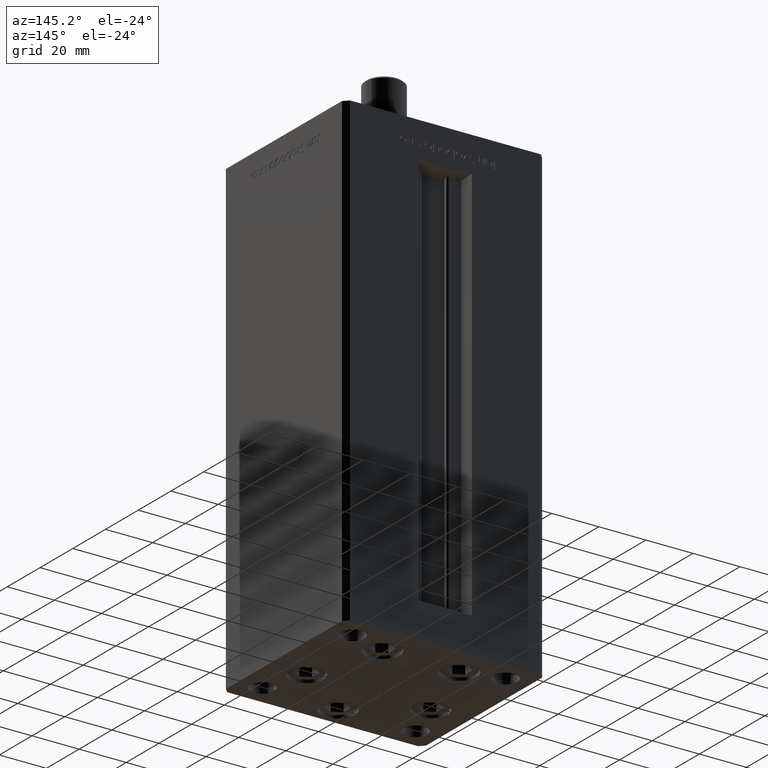
[diagram: clean part render]
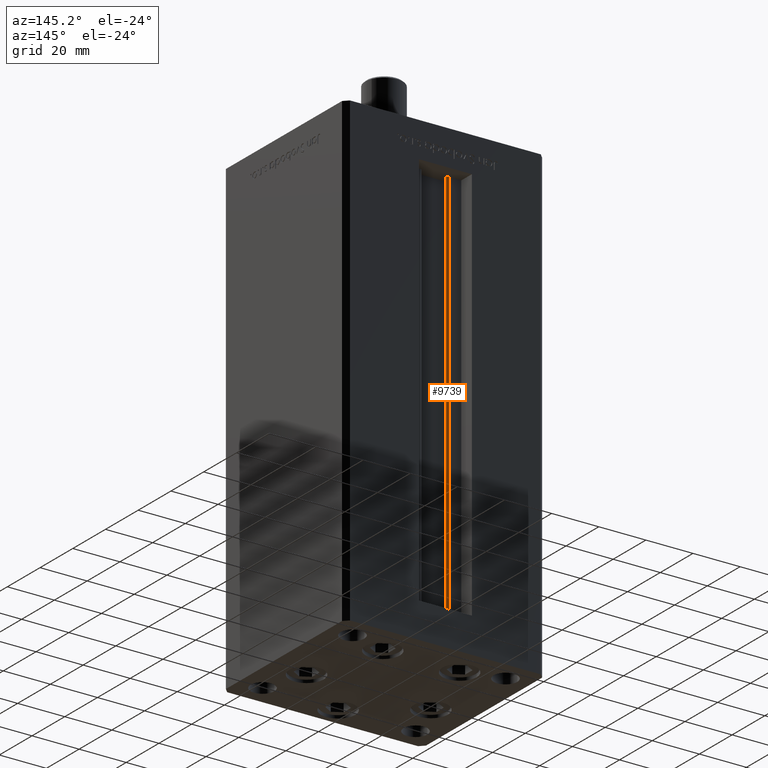
[diagram: same view with one face highlighted and labeled with its STEP entity id]
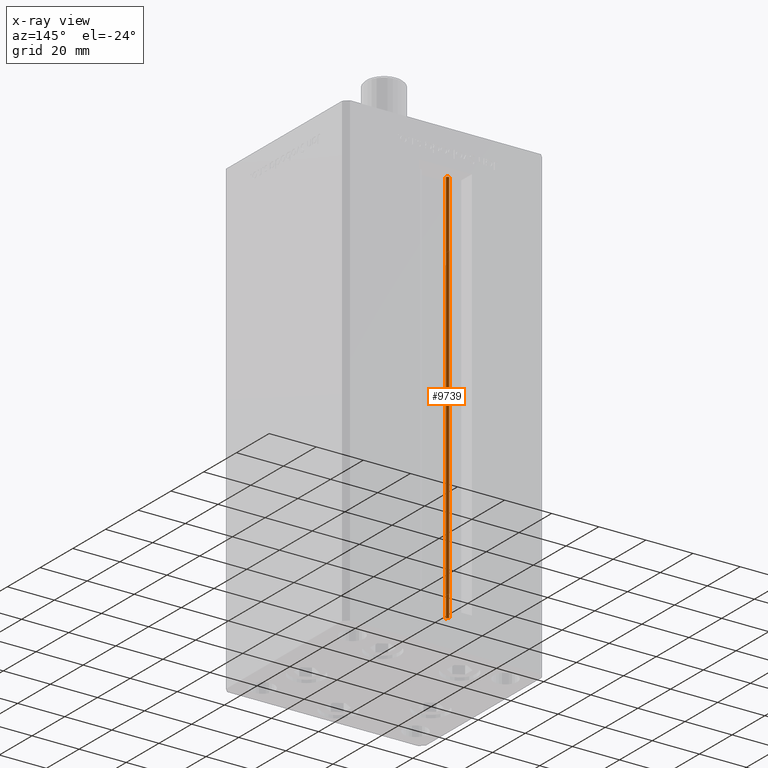
[diagram: x-ray of the same camera — body ghosted, the highlighted face saturated]
A machine part, auxiliary view. The second image highlights one B-rep face of the part: STEP entity #9739.
The next image is the same camera in x-ray: the body ghosted, the highlighted face saturated — about 0% of this face is hidden behind the body in this view.
In plain terms, the highlighted cylindrical surface (edge-blend (fillet) strip) has radius 0.9333 mm, axis along (0, 0, 1).
Its self-contained STEP definition (entity closure, byte-faithful):
#341 = CARTESIAN_POINT ( 'NONE',  ( -6.183333333333999704, 30.99999999999999289, 168.5000000000000000 ) ) ;
#374 = CIRCLE ( 'NONE', #27468, 0.9333333333340015914 ) ;
#528 = DIRECTION ( 'NONE',  ( 0.000000000000000000, 0.000000000000000000, -1.000000000000000000 ) ) ;
#2448 = AXIS2_PLACEMENT_3D ( 'NONE', #30695, #10281, #39665 ) ;
#7507 = CIRCLE ( 'NONE', #2448, 0.9333333333340015914 ) ;
#9675 = EDGE_CURVE ( 'NONE', #15786, #52094, #38203, .T. ) ;
#9739 = ADVANCED_FACE ( 'NONE', ( #13310 ), #29483, .T. ) ;
#10281 = DIRECTION ( 'NONE',  ( -0.000000000000000000, -0.000000000000000000, -1.000000000000000000 ) ) ;
#10504 = VERTEX_POINT ( 'NONE', #43981 ) ;
#10572 = ORIENTED_EDGE ( 'NONE', *, *, #9675, .F. ) ;
#11010 = AXIS2_PLACEMENT_3D ( 'NONE', #45630, #38987, #27049 ) ;
#13310 = FACE_OUTER_BOUND ( 'NONE', #32880, .T. ) ;
#15786 = VERTEX_POINT ( 'NONE', #47539 ) ;
#19490 = VECTOR ( 'NONE', #33975, 1000.000000000000000 ) ;
#20680 = CARTESIAN_POINT ( 'NONE',  ( -6.183333333333999704, 30.06666666666599141, 168.5000000000000000 ) ) ;
#20949 = DIRECTION ( 'NONE',  ( 1.000000000000000000, 0.000000000000000000, 0.000000000000000000 ) ) ;
#21062 = ORIENTED_EDGE ( 'NONE', *, *, #24686, .T. ) ;
#24686 = EDGE_CURVE ( 'NONE', #10504, #43997, #52406, .T. ) ;
#26451 = ORIENTED_EDGE ( 'NONE', *, *, #45675, .F. ) ;
#27049 = DIRECTION ( 'NONE',  ( 1.000000000000000000, 0.000000000000000000, 0.000000000000000000 ) ) ;
#27468 = AXIS2_PLACEMENT_3D ( 'NONE', #20680, #528, #20949 ) ;
#27493 = EDGE_CURVE ( 'NONE', #43997, #52094, #374, .T. ) ;
#29483 = CYLINDRICAL_SURFACE ( 'NONE', #11010, 0.9333333333340015914 ) ;
#30282 = ORIENTED_EDGE ( 'NONE', *, *, #27493, .T. ) ;
#30695 = CARTESIAN_POINT ( 'NONE',  ( -6.183333333333999704, 30.06666666666599141, 0.000000000000000000 ) ) ;
#30741 = CARTESIAN_POINT ( 'NONE',  ( -5.249999999999997335, 30.06666666666599141, 168.5000000000000000 ) ) ;
#32880 = EDGE_LOOP ( 'NONE', ( #10572, #26451, #21062, #30282 ) ) ;
#33975 = DIRECTION ( 'NONE',  ( -0.000000000000000000, -0.000000000000000000, 1.000000000000000000 ) ) ;
#37697 = CARTESIAN_POINT ( 'NONE',  ( -5.249999999999997335, 30.06666666666599141, 0.000000000000000000 ) ) ;
#38203 = LINE ( 'NONE', #37697, #19490 ) ;
#38987 = DIRECTION ( 'NONE',  ( -0.000000000000000000, -0.000000000000000000, 1.000000000000000000 ) ) ;
#39665 = DIRECTION ( 'NONE',  ( 1.000000000000000000, 0.000000000000000000, 0.000000000000000000 ) ) ;
#40206 = CARTESIAN_POINT ( 'NONE',  ( -6.183333333333999704, 30.99999999999999289, 0.000000000000000000 ) ) ;
#43981 = CARTESIAN_POINT ( 'NONE',  ( -6.183333333333999704, 30.99999999999999289, 0.000000000000000000 ) ) ;
#43997 = VERTEX_POINT ( 'NONE', #341 ) ;
#44447 = DIRECTION ( 'NONE',  ( -0.000000000000000000, -0.000000000000000000, 1.000000000000000000 ) ) ;
#45630 = CARTESIAN_POINT ( 'NONE',  ( -6.183333333333999704, 30.06666666666599141, 0.000000000000000000 ) ) ;
#45675 = EDGE_CURVE ( 'NONE', #10504, #15786, #7507, .T. ) ;
#47539 = CARTESIAN_POINT ( 'NONE',  ( -5.249999999999997335, 30.06666666666599141, 0.000000000000000000 ) ) ;
#49512 = VECTOR ( 'NONE', #44447, 1000.000000000000000 ) ;
#52094 = VERTEX_POINT ( 'NONE', #30741 ) ;
#52406 = LINE ( 'NONE', #40206, #49512 ) ;